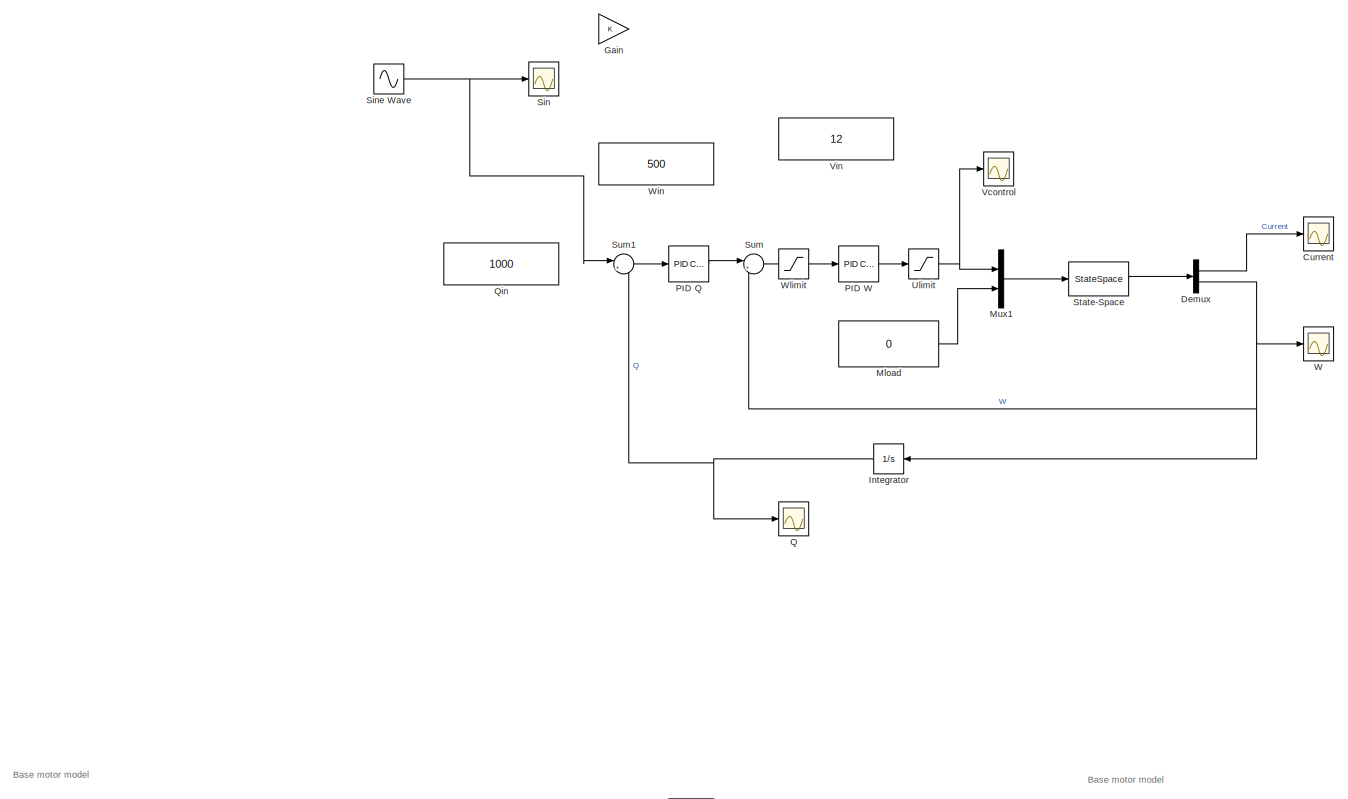
[diagram: root canvas - part 1/4, top left region]
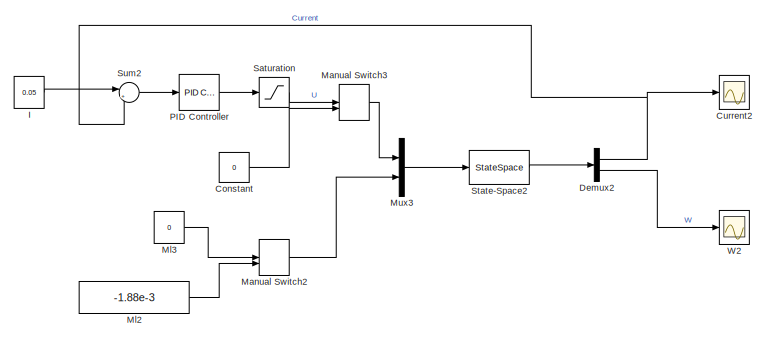
[diagram: root canvas - part 2/4, top right region]
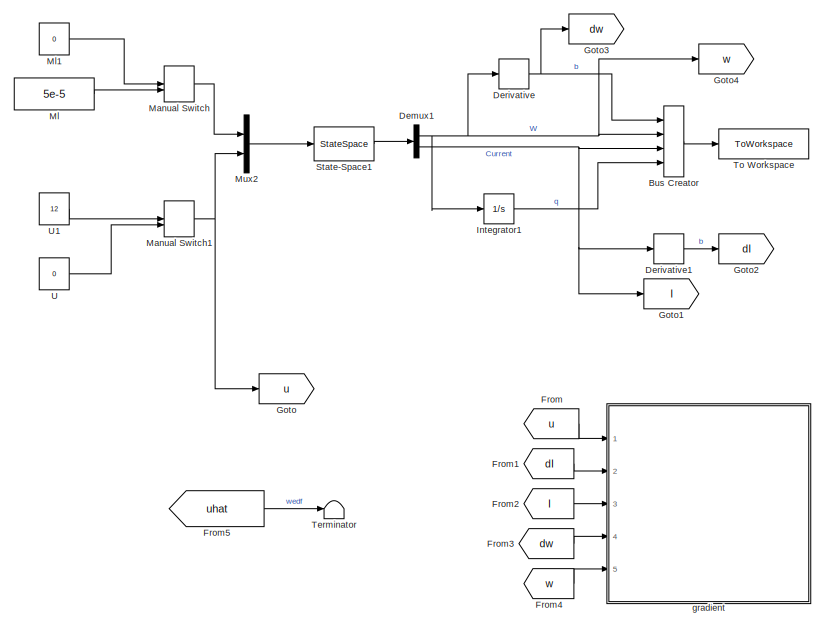
[diagram: root canvas - part 3/4, bottom left region]
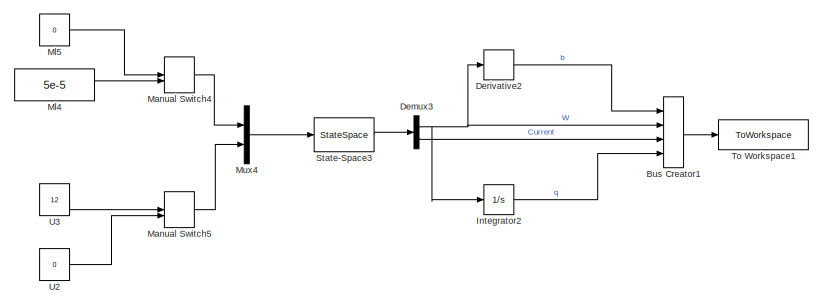
[diagram: root canvas - part 4/4, bottom center region]
MODEL slx_9c51a2706b20
KIND model
CONFIG AbsTol = auto
CONFIG EnableMultiTasking = off
CONFIG FixedStep = auto
CONFIG MaxStep = 0.0001
CONFIG MinStep = auto
CONFIG RelTol = 1e-3
CONFIG SampleTimeConstraint = Unconstrained
CONFIG SolverName = ode23t
CONFIG StartTime = 0.0
CONFIG StopTime = 0.1
BLOCK [BusCreator] Bus Creator
  DisplayOption = bar
  InheritFromInputs = on
  Inputs = 4
  Ports = [4, 1]
BLOCK [BusCreator] Bus Creator1
  Commented = on
  DisplayOption = bar
  InheritFromInputs = on
  Inputs = 4
  Ports = [4, 1]
BLOCK [Constant] Constant
  Commented = on
  Value = 0
BLOCK [Scope] Current
  Commented = on
  Floating = off
  NumInputPorts = 1
  Ports = [1]
  ScopeSpecificationString = Simulink.scopes.TimeScopeBlockCfg('CurrentConfiguration', extmgr.ConfigurationSet(extmgr.Configuration('Core','General UI',true),extmgr.Configuration('Core','Source UI',true),extmgr.Configuration('Sources','WiredSimulink',true,'DataLoggingVariableName','ScopeData4'),extmgr.Configuration('Visuals','Time Domain',true,'SerializedDisplays',{struct('MinYLimReal','-0.03215','MaxYLimReal','0.28934','YLab...<+1749ch>
BLOCK [Scope] Current2
  Commented = on
  Floating = off
  NumInputPorts = 1
  Ports = [1]
  ScopeSpecificationString = Simulink.scopes.TimeScopeBlockCfg('CurrentConfiguration', extmgr.ConfigurationSet(extmgr.Configuration('Core','General UI',true),extmgr.Configuration('Core','Source UI',true),extmgr.Configuration('Sources','WiredSimulink',true,'DataLoggingVariableName','ScopeData1'),extmgr.Configuration('Visuals','Time Domain',true,'SerializedDisplays',{struct('MinYLimReal','-0.03215','MaxYLimReal','0.28934','YLab...<+1749ch>
BLOCK [Demux] Demux
  Commented = on
  Outputs = 2
  Ports = [1, 2]
BLOCK [Demux] Demux1
  Outputs = 2
  Ports = [1, 2]
BLOCK [Demux] Demux2
  Commented = on
  Outputs = 2
  Ports = [1, 2]
BLOCK [Demux] Demux3
  Commented = on
  Outputs = 2
  Ports = [1, 2]
BLOCK [Derivative] Derivative
BLOCK [Derivative] Derivative1
BLOCK [Derivative] Derivative2
  Commented = on
BLOCK [From] From
  GotoTag = u
BLOCK [From] From1
  GotoTag = dI
BLOCK [From] From2
  GotoTag = I
BLOCK [From] From3
  GotoTag = dw
BLOCK [From] From4
  GotoTag = w
BLOCK [From] From5
  GotoTag = uhat
  TagVisibility = global
BLOCK [Gain] Gain
  Commented = on
BLOCK [Goto] Goto
  GotoTag = u
BLOCK [Goto] Goto1
  GotoTag = I
BLOCK [Goto] Goto2
  GotoTag = dI
BLOCK [Goto] Goto3
  GotoTag = dw
BLOCK [Goto] Goto4
  GotoTag = w
BLOCK [Constant] I
  Commented = on
  Value = 0.05
BLOCK [Integrator] Integrator
  Commented = on
  Ports = [1, 1]
BLOCK [Integrator] Integrator1
  Ports = [1, 1]
BLOCK [Integrator] Integrator2
  Commented = on
  Ports = [1, 1]
BLOCK [ManualSwitch] Manual Switch
BLOCK [ManualSwitch] Manual Switch1
BLOCK [ManualSwitch] Manual Switch2
  Commented = on
  CurrentSetting = 0
BLOCK [ManualSwitch] Manual Switch3
  Commented = on
BLOCK [ManualSwitch] Manual Switch4
  Commented = on
BLOCK [ManualSwitch] Manual Switch5
  Commented = on
BLOCK [Constant] Ml
  Value = 5e-5
BLOCK [Constant] Ml1
  Value = 0
BLOCK [Constant] Ml2
  Commented = on
  Value = -1.88e-3
BLOCK [Constant] Ml3
  Commented = on
  Value = 0
BLOCK [Constant] Ml4
  Commented = on
  Value = 5e-5
BLOCK [Constant] Ml5
  Commented = on
  Value = 0
BLOCK [Constant] Mload
  Commented = on
  Value = 0
BLOCK [Mux] Mux1
  Commented = on
  DisplayOption = bar
  Inputs = 2
  Ports = [2, 1]
BLOCK [Mux] Mux2
  DisplayOption = bar
  Inputs = 2
  Ports = [2, 1]
BLOCK [Mux] Mux3
  Commented = on
  DisplayOption = bar
  Inputs = 2
  Ports = [2, 1]
BLOCK [Mux] Mux4
  Commented = on
  DisplayOption = bar
  Inputs = 2
  Ports = [2, 1]
BLOCK [Reference] PID Controller  REF=slpidlib/PID Controller
  Commented = on
  Ports = [1, 1]
  SourceBlock = slpidlib/PID Controller
  SourceProductBaseCode = SL
  SourceType = PID 1dof
BLOCK [Reference] PID Q  REF=slpidlib/PID Controller
  Commented = on
  Ports = [1, 1]
  SourceBlock = slpidlib/PID Controller
  SourceProductBaseCode = SL
  SourceType = PID 1dof
BLOCK [Reference] PID W  REF=slpidlib/PID Controller
  Commented = on
  Ports = [1, 1]
  SourceBlock = slpidlib/PID Controller
  SourceProductBaseCode = SL
  SourceType = PID 1dof
BLOCK [Scope] Q
  Commented = on
  Floating = off
  NumInputPorts = 1
  Ports = [1]
  ScopeSpecificationString = Simulink.scopes.TimeScopeBlockCfg('CurrentConfiguration', extmgr.ConfigurationSet(extmgr.Configuration('Core','General UI',true),extmgr.Configuration('Core','Source UI',true),extmgr.Configuration('Sources','WiredSimulink',true,'DataLoggingVariableName','ScopeData1'),extmgr.Configuration('Visuals','Time Domain',true,'SerializedDisplays',{struct('MinYLimReal','-121.12647','MaxYLimReal','1090.13825',...<+1477ch>
BLOCK [Constant] Qin
  Commented = on
  Value = 1000
BLOCK [Saturate] Saturation
  Commented = on
  LinearizeAsGain = off
  LowerLimit = -12
  UpperLimit = 12
  ZeroCross = off
BLOCK [Scope] Sin
  Commented = on
  Floating = off
  NumInputPorts = 1
  Ports = [1]
  ScopeSpecificationString = Simulink.scopes.TimeScopeBlockCfg('CurrentConfiguration', extmgr.ConfigurationSet(extmgr.Configuration('Core','General UI',true),extmgr.Configuration('Core','Source UI',true),extmgr.Configuration('Sources','WiredSimulink',true,'DataLoggingVariableName','ScopeData2'),extmgr.Configuration('Visuals','Time Domain',true,'SerializedDisplays',{struct('MinYLimReal','-1.25','MaxYLimReal','1.24998','YLabelR...<+1491ch>
BLOCK [Sin] Sine Wave
  Amplitude = 100
  Bias = 250
  Commented = on
  Frequency = 2*pi
  Ports = [0, 1]
  SampleTime = 0
BLOCK [StateSpace] State-Space
  A = A
  B = B
  C = C
  Commented = on
  D = D
  InitialCondition = 0
  Ports = [1, 1]
BLOCK [StateSpace] State-Space1
  A = A
  B = B
  C = C
  D = D
  InitialCondition = 0
  Ports = [1, 1]
BLOCK [StateSpace] State-Space2
  A = A
  B = B
  C = C
  Commented = on
  D = D
  InitialCondition = 0
  Ports = [1, 1]
BLOCK [StateSpace] State-Space3
  A = Ah
  B = Bh
  C = C
  Commented = on
  D = D
  InitialCondition = [0; 0]
  Ports = [1, 1]
BLOCK [Sum] Sum
  Commented = on
  Inputs = |+-
  Ports = [2, 1]
BLOCK [Sum] Sum1
  Commented = on
  Inputs = |+-
  Ports = [2, 1]
BLOCK [Sum] Sum2
  Commented = on
  Inputs = |+-
  Ports = [2, 1]
BLOCK [Terminator] Terminator
BLOCK [ToWorkspace] To Workspace
  FixptAsFi = on
  MaxDataPoints = inf
  Ports = [1]
  SampleTime = -1
  SaveFormat = Timeseries
  VariableName = simout
BLOCK [ToWorkspace] To Workspace1
  Commented = on
  FixptAsFi = on
  MaxDataPoints = inf
  Ports = [1]
  SampleTime = -1
  SaveFormat = Timeseries
  VariableName = simout1
BLOCK [Constant] U
  Value = 0
BLOCK [Constant] U1
  Value = 12
BLOCK [Constant] U2
  Commented = on
  Value = 0
BLOCK [Constant] U3
  Commented = on
  Value = 12
BLOCK [Saturate] Ulimit
  Commented = on
  LowerLimit = -12
  UpperLimit = 12
BLOCK [Scope] Vcontrol
  Commented = on
  Floating = off
  NumInputPorts = 1
  Ports = [1]
  ScopeSpecificationString = Simulink.scopes.TimeScopeBlockCfg('CurrentConfiguration', extmgr.ConfigurationSet(extmgr.Configuration('Core','General UI',true),extmgr.Configuration('Core','Source UI',true),extmgr.Configuration('Sources','WiredSimulink',true,'DataLoggingVariableName','ScopeData1'),extmgr.Configuration('Visuals','Time Domain',true,'SerializedDisplays',{struct('MinYLimReal','-2.8683','MaxYLimReal','13.65203','YLab...<+1466ch>
BLOCK [Constant] Vin
  Commented = on
  Value = 12
BLOCK [Scope] W
  Commented = on
  Floating = off
  NumInputPorts = 1
  Ports = [1]
  ScopeSpecificationString = Simulink.scopes.TimeScopeBlockCfg('CurrentConfiguration', extmgr.ConfigurationSet(extmgr.Configuration('Core','General UI',true),extmgr.Configuration('Core','Source UI',true),extmgr.Configuration('Sources','WiredSimulink',true,'DataLoggingVariableName','ScopeData3'),extmgr.Configuration('Visuals','Time Domain',true,'SerializedDisplays',{struct('MinYLimReal','-121.12647','MaxYLimReal','1090.13825',...<+1477ch>
BLOCK [Scope] W2
  Commented = on
  Floating = off
  NumInputPorts = 1
  Ports = [1]
  ScopeSpecificationString = Simulink.scopes.TimeScopeBlockCfg('CurrentConfiguration', extmgr.ConfigurationSet(extmgr.Configuration('Core','General UI',true),extmgr.Configuration('Core','Source UI',true),extmgr.Configuration('Sources','WiredSimulink',true,'DataLoggingVariableName','ScopeData2'),extmgr.Configuration('Visuals','Time Domain',true,'SerializedDisplays',{struct('MinYLimReal','-121.12647','MaxYLimReal','1090.13825',...<+1477ch>
BLOCK [Constant] Win
  Commented = on
  Value = 500
BLOCK [Saturate] Wlimit
  Commented = on
  LinearizeAsGain = off
  LowerLimit = -902
  UpperLimit = 902
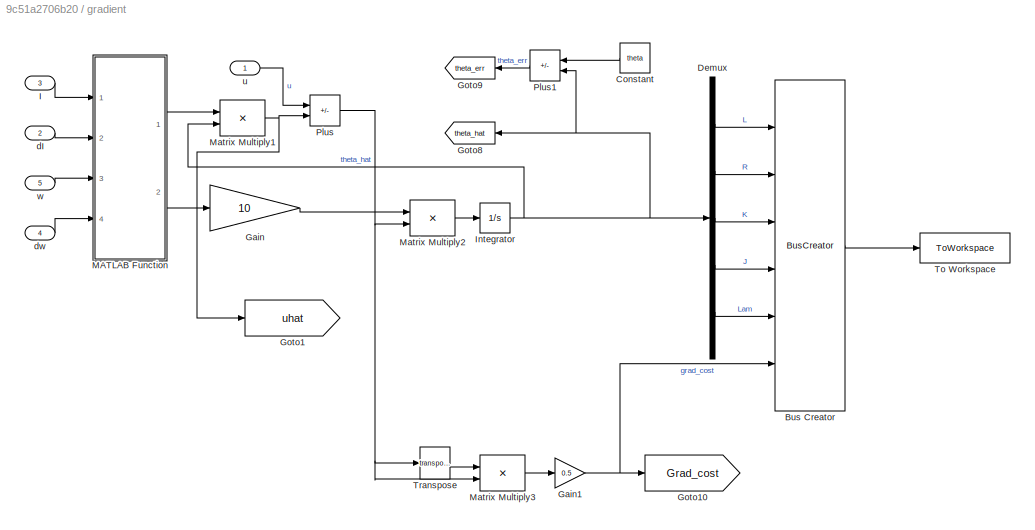
BLOCK [SubSystem] gradient
  Ports = [5]
  RequestExecContextInheritance = off
BLOCK [BusCreator] gradient/Bus Creator
  DisplayOption = bar
  InheritFromInputs = on
  Inputs = 6
  Ports = [6, 1]
BLOCK [Constant] gradient/Constant
  Commented = on
  NameLocation = top
  Value = theta
BLOCK [Demux] gradient/Demux
  Outputs = 5
  Ports = [1, 5]
BLOCK [Gain] gradient/Gain
  Gain = 10
BLOCK [Gain] gradient/Gain1
  Gain = 0.5
BLOCK [Goto] gradient/Goto1
  GotoTag = uhat
  TagVisibility = global
BLOCK [Goto] gradient/Goto10
  GotoTag = Grad_cost
  TagVisibility = global
BLOCK [Goto] gradient/Goto8
  Commented = on
  GotoTag = theta_hat
  NameLocation = top
  TagVisibility = global
BLOCK [Goto] gradient/Goto9
  Commented = on
  GotoTag = theta_err
  NameLocation = top
  TagVisibility = global
BLOCK [Inport] gradient/I
  Port = 3
BLOCK [Integrator] gradient/Integrator
  InitialCondition = 0.1
  Ports = [1, 1]
  ZeroCross = off
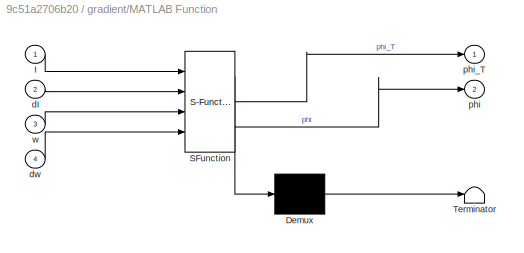
BLOCK [SubSystem] gradient/MATLAB Function
  ErrorFcn = Stateflow.Translate.translate
  PermitHierarchicalResolution = ExplicitOnly
  Ports = [4, 2]
  RequestExecContextInheritance = off
  SFBlockType = MATLAB Function
  TreatAsAtomicUnit = on
BLOCK [Demux] gradient/MATLAB Function/ Demux 
  Outputs = 1
  Ports = [1, 1]
BLOCK [S-Function] gradient/MATLAB Function/ SFunction 
  EnableBusSupport = on
  FunctionName = sf_sfun
  PortCounts = [4 3]
  Ports = [4, 3]
  SFcnIsStateOwnerBlock = off
  SFunctionDeploymentMode = off
  Tag = Stateflow S-Function 5
BLOCK [Terminator] gradient/MATLAB Function/ Terminator 
BLOCK [Inport] gradient/MATLAB Function/I
BLOCK [Inport] gradient/MATLAB Function/dI
  Port = 2
BLOCK [Inport] gradient/MATLAB Function/dw
  Port = 4
BLOCK [Outport] gradient/MATLAB Function/phi
  Port = 2
BLOCK [Outport] gradient/MATLAB Function/phi_T
BLOCK [Inport] gradient/MATLAB Function/w
  Port = 3
BLOCK [Product] gradient/Matrix Multiply1
  Multiplication = Matrix(*)
  Ports = [2, 1]
BLOCK [Product] gradient/Matrix Multiply2
  Multiplication = Matrix(*)
  Ports = [2, 1]
BLOCK [Product] gradient/Matrix Multiply3
  Multiplication = Matrix(*)
  Ports = [2, 1]
BLOCK [Sum] gradient/Plus
  IconShape = rectangular
  Inputs = +-
  Ports = [2, 1]
BLOCK [Sum] gradient/Plus1
  Commented = on
  IconShape = rectangular
  Inputs = +-
  NameLocation = top
  Ports = [2, 1]
BLOCK [ToWorkspace] gradient/To Workspace
  FixptAsFi = on
  MaxDataPoints = inf
  Ports = [1]
  SampleTime = -1
  SaveFormat = Timeseries
  VariableName = est
BLOCK [Math] gradient/Transpose
  Operator = transpose
  Ports = [1, 1]
BLOCK [Inport] gradient/dI
  Port = 2
BLOCK [Inport] gradient/dw
  Port = 4
BLOCK [Inport] gradient/u
BLOCK [Inport] gradient/w
  Port = 5
ANNOTATION (root): Base motor model
LINE Bus Creator1:1 -> To Workspace1:1
LINE Bus Creator:1 -> To Workspace:1
LINE Constant:1 -> Manual Switch3:2
NET Demux1:1 -> Bus Creator:2, Derivative:1, Goto4:1, Integrator1:1
NET Demux1:2 -> Bus Creator:3, Derivative1:1, Goto1:1
NET Demux2:1 -> Current2:1, Sum2:2
LINE Demux2:2 -> W2:1
NET Demux3:1 -> Bus Creator1:2, Derivative2:1, Integrator2:1
LINE Demux3:2 -> Bus Creator1:3
LINE Demux:1 -> Current:1
NET Demux:2 -> Integrator:1, Sum:2, W:1
LINE Derivative1:1 -> Goto2:1
LINE Derivative2:1 -> Bus Creator1:1
NET Derivative:1 -> Bus Creator:1, Goto3:1
LINE From1:1 -> gradient:2
LINE From2:1 -> gradient:3
LINE From3:1 -> gradient:4
LINE From4:1 -> gradient:5
LINE From5:1 -> Terminator:1
LINE From:1 -> gradient:1
LINE I:1 -> Sum2:1
LINE Integrator1:1 -> Bus Creator:4
LINE Integrator2:1 -> Bus Creator1:4
NET Integrator:1 -> Q:1, Sum1:2
NET Manual Switch1:1 -> Goto:1, Mux2:2
LINE Manual Switch2:1 -> Mux3:2
LINE Manual Switch3:1 -> Mux3:1
LINE Manual Switch4:1 -> Mux4:1
LINE Manual Switch5:1 -> Mux4:2
LINE Manual Switch:1 -> Mux2:1
LINE Ml1:1 -> Manual Switch:1
LINE Ml2:1 -> Manual Switch2:2
LINE Ml3:1 -> Manual Switch2:1
LINE Ml4:1 -> Manual Switch4:2
LINE Ml5:1 -> Manual Switch4:1
LINE Ml:1 -> Manual Switch:2
LINE Mload:1 -> Mux1:2
LINE Mux1:1 -> State-Space:1
LINE Mux2:1 -> State-Space1:1
LINE Mux3:1 -> State-Space2:1
LINE Mux4:1 -> State-Space3:1
LINE PID Controller:1 -> Saturation:1
LINE PID Q:1 -> Sum:1
LINE PID W:1 -> Ulimit:1
LINE Saturation:1 -> Manual Switch3:1
NET Sine Wave:1 -> Sin:1, Sum1:1
LINE State-Space1:1 -> Demux1:1
LINE State-Space2:1 -> Demux2:1
LINE State-Space3:1 -> Demux3:1
LINE State-Space:1 -> Demux:1
LINE Sum1:1 -> PID Q:1
LINE Sum2:1 -> PID Controller:1
LINE Sum:1 -> PID W:1
LINE U1:1 -> Manual Switch1:1
LINE U2:1 -> Manual Switch5:2
LINE U3:1 -> Manual Switch5:1
LINE U:1 -> Manual Switch1:2
NET Ulimit:1 -> Mux1:1, Vcontrol:1
LINE gradient/Bus Creator:1 -> gradient/To Workspace:1
LINE gradient/Constant:1 -> gradient/Plus1:1
LINE gradient/Demux:1 -> gradient/Bus Creator:1
LINE gradient/Demux:2 -> gradient/Bus Creator:2
LINE gradient/Demux:3 -> gradient/Bus Creator:3
LINE gradient/Demux:4 -> gradient/Bus Creator:4
LINE gradient/Demux:5 -> gradient/Bus Creator:5
NET gradient/Gain1:1 -> gradient/Bus Creator:6, gradient/Goto10:1
LINE gradient/Gain:1 -> gradient/Matrix Multiply2:1
LINE gradient/I:1 -> gradient/MATLAB Function:1
NET gradient/Integrator:1 -> gradient/Demux:1, gradient/Goto8:1, gradient/Matrix Multiply1:2, gradient/Plus1:2
LINE gradient/MATLAB Function:1 -> gradient/Matrix Multiply1:1
LINE gradient/MATLAB Function:2 -> gradient/Gain:1
NET gradient/Matrix Multiply1:1 -> gradient/Goto1:1, gradient/Plus:2
LINE gradient/Matrix Multiply2:1 -> gradient/Integrator:1
LINE gradient/Matrix Multiply3:1 -> gradient/Gain1:1
LINE gradient/Plus1:1 -> gradient/Goto9:1
NET gradient/Plus:1 -> gradient/Matrix Multiply2:2, gradient/Matrix Multiply3:2, gradient/Transpose:1
LINE gradient/Transpose:1 -> gradient/Matrix Multiply3:1
LINE gradient/dI:1 -> gradient/MATLAB Function:2
LINE gradient/dw:1 -> gradient/MATLAB Function:4
LINE gradient/u:1 -> gradient/Plus:1
LINE gradient/w:1 -> gradient/MATLAB Function:3
note: NET lines group one-source signal fan-out (src -> all destinations, sorted); 1:1 wires keep LINE
CHART gradient/MATLAB Function states=1 transitions=1
  STATE_LABEL 'eML_blk_kernel()'
  STATE_LABEL "SCRIPT:\nfunction [phi_T, phi]= fcn(I, dI, w, dw)\n\n% phi = zeros(5,2);\n% phi(1,1) = dI;\n% phi(2,1) = I;\n% phi(3,1) = w;\n% phi(2,2) = ddq(1)*c2 + dq(1)^2*s2;\n% \n% phi(3,2) = ddq(1);\n% phi(4,2) = ddq(2);\n% phi(5,1) = dq(1);\nphi = [dI 0;\n     I 0;\n     w -I;\n     0 dw;\n     0 w];\nphi_T = phi';"
CHART  states=0 transitions=0
